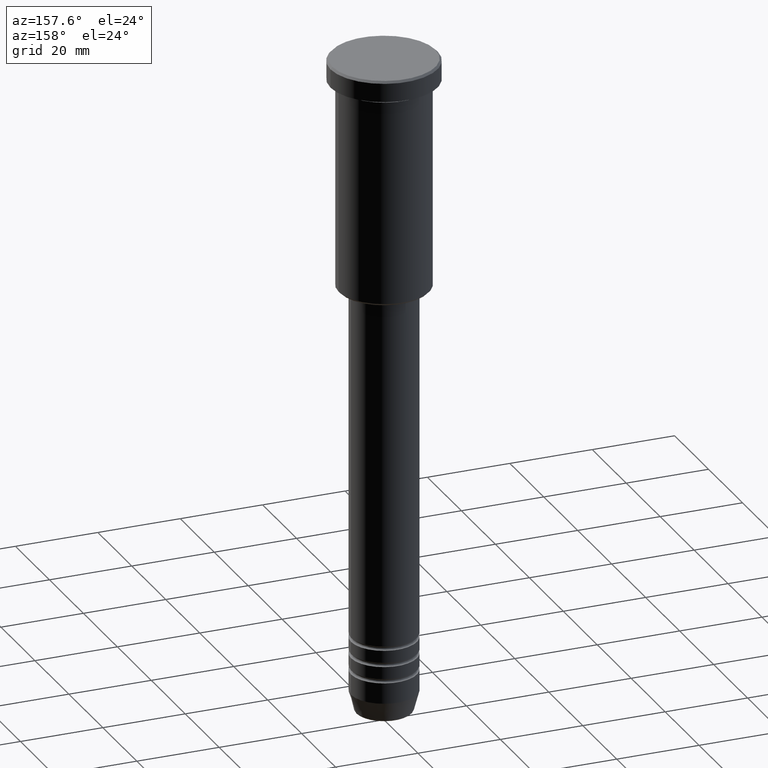
[diagram: clean part render]
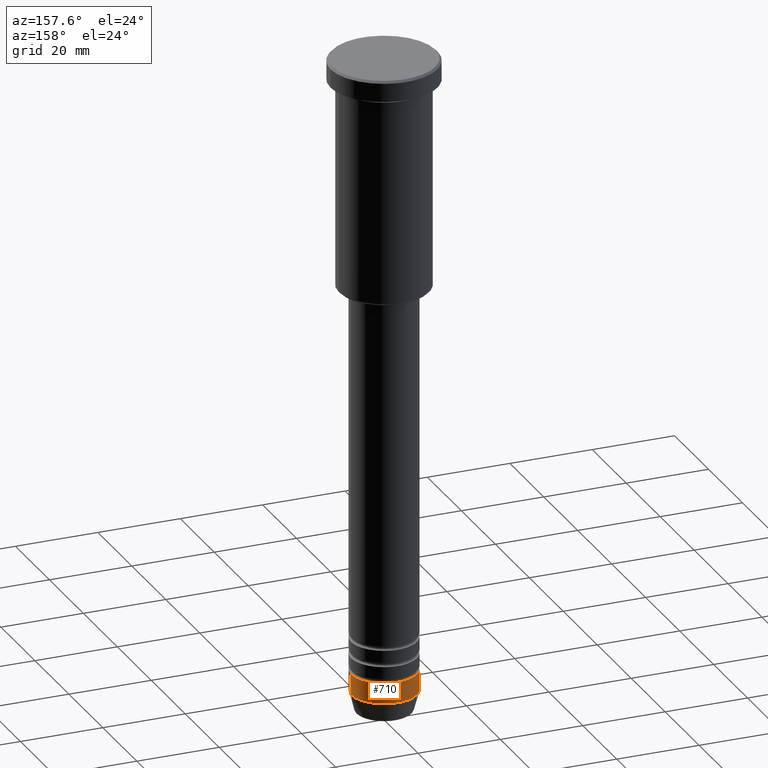
[diagram: same view with one face highlighted and labeled with its STEP entity id]
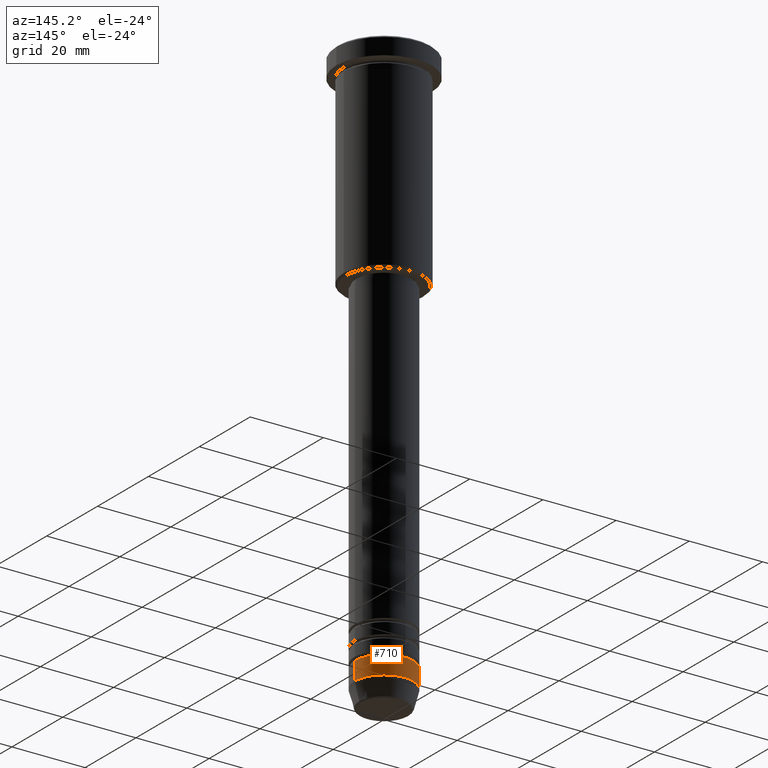
[diagram: same view with one face highlighted and labeled with its STEP entity id]
A machine part, auxiliary view. The second image highlights one B-rep face of the part: STEP entity #710.
A second angle (auxiliary view) of the same face is appended — the face is thin or edge-on in the first view.
In plain terms, the highlighted cylindrical surface (edge-blend (fillet) strip) has radius 8 mm, axis along (-0, -0, 1).
Its self-contained STEP definition (entity closure, byte-faithful):
#1 = DIRECTION ( 'NONE',  ( -0.000000000000000000, -0.000000000000000000, 1.000000000000000000 ) ) ;
#11 = VERTEX_POINT ( 'NONE', #1011 ) ;
#32 = VECTOR ( 'NONE', #707, 1000.000000000000000 ) ;
#41 = CARTESIAN_POINT ( 'NONE',  ( 0.000000000000000000, 0.000000000000000000, -155.0000000000000000 ) ) ;
#47 = DIRECTION ( 'NONE',  ( -0.000000000000000000, -0.000000000000000000, 1.000000000000000000 ) ) ;
#193 = CIRCLE ( 'NONE', #1159, 8.000000000000000000 ) ;
#215 = CARTESIAN_POINT ( 'NONE',  ( -8.000000000000000000, 9.797174393178825657E-16, -155.0000000000000000 ) ) ;
#238 = DIRECTION ( 'NONE',  ( 1.000000000000000000, 0.000000000000000000, 0.000000000000000000 ) ) ;
#253 = ORIENTED_EDGE ( 'NONE', *, *, #1055, .F. ) ;
#283 = AXIS2_PLACEMENT_3D ( 'NONE', #41, #482, #238 ) ;
#291 = CARTESIAN_POINT ( 'NONE',  ( 8.000000000000000000, 0.000000000000000000, 0.000000000000000000 ) ) ;
#311 = EDGE_CURVE ( 'NONE', #1052, #11, #723, .T. ) ;
#424 = FACE_OUTER_BOUND ( 'NONE', #777, .T. ) ;
#482 = DIRECTION ( 'NONE',  ( -0.000000000000000000, -0.000000000000000000, 1.000000000000000000 ) ) ;
#498 = ORIENTED_EDGE ( 'NONE', *, *, #945, .F. ) ;
#509 = DIRECTION ( 'NONE',  ( 1.000000000000000000, 0.000000000000000000, 0.000000000000000000 ) ) ;
#530 = AXIS2_PLACEMENT_3D ( 'NONE', #864, #47, #509 ) ;
#555 = LINE ( 'NONE', #291, #873 ) ;
#567 = CARTESIAN_POINT ( 'NONE',  ( 0.000000000000000000, 0.000000000000000000, -150.0000000000000000 ) ) ;
#575 = ORIENTED_EDGE ( 'NONE', *, *, #1063, .T. ) ;
#627 = CARTESIAN_POINT ( 'NONE',  ( -8.000000000000000000, 9.797174393178825657E-16, 0.000000000000000000 ) ) ;
#660 = CARTESIAN_POINT ( 'NONE',  ( 8.000000000000000000, 0.000000000000000000, -155.0000000000000000 ) ) ;
#667 = VERTEX_POINT ( 'NONE', #660 ) ;
#707 = DIRECTION ( 'NONE',  ( -0.000000000000000000, -0.000000000000000000, 1.000000000000000000 ) ) ;
#710 = ADVANCED_FACE ( 'NONE', ( #424 ), #949, .T. ) ;
#714 = VERTEX_POINT ( 'NONE', #1121 ) ;
#723 = LINE ( 'NONE', #627, #32 ) ;
#736 = CIRCLE ( 'NONE', #283, 8.000000000000000000 ) ;
#775 = DIRECTION ( 'NONE',  ( 1.000000000000000000, 0.000000000000000000, 0.000000000000000000 ) ) ;
#777 = EDGE_LOOP ( 'NONE', ( #575, #785, #253, #498 ) ) ;
#785 = ORIENTED_EDGE ( 'NONE', *, *, #311, .T. ) ;
#864 = CARTESIAN_POINT ( 'NONE',  ( 0.000000000000000000, 0.000000000000000000, 0.000000000000000000 ) ) ;
#866 = DIRECTION ( 'NONE',  ( -0.000000000000000000, -0.000000000000000000, 1.000000000000000000 ) ) ;
#873 = VECTOR ( 'NONE', #1, 1000.000000000000000 ) ;
#945 = EDGE_CURVE ( 'NONE', #667, #714, #555, .T. ) ;
#949 = CYLINDRICAL_SURFACE ( 'NONE', #530, 8.000000000000000000 ) ;
#1011 = CARTESIAN_POINT ( 'NONE',  ( -8.000000000000000000, 9.797174393178825657E-16, -150.0000000000000000 ) ) ;
#1052 = VERTEX_POINT ( 'NONE', #215 ) ;
#1055 = EDGE_CURVE ( 'NONE', #714, #11, #193, .T. ) ;
#1063 = EDGE_CURVE ( 'NONE', #667, #1052, #736, .T. ) ;
#1121 = CARTESIAN_POINT ( 'NONE',  ( 8.000000000000000000, 0.000000000000000000, -150.0000000000000000 ) ) ;
#1159 = AXIS2_PLACEMENT_3D ( 'NONE', #567, #866, #775 ) ;